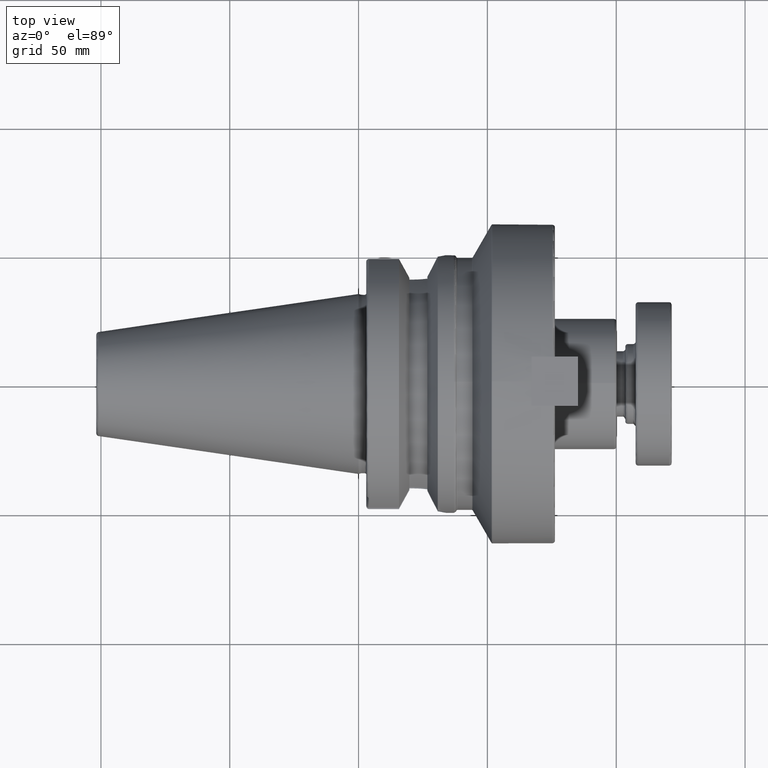
[diagram: clean part render]
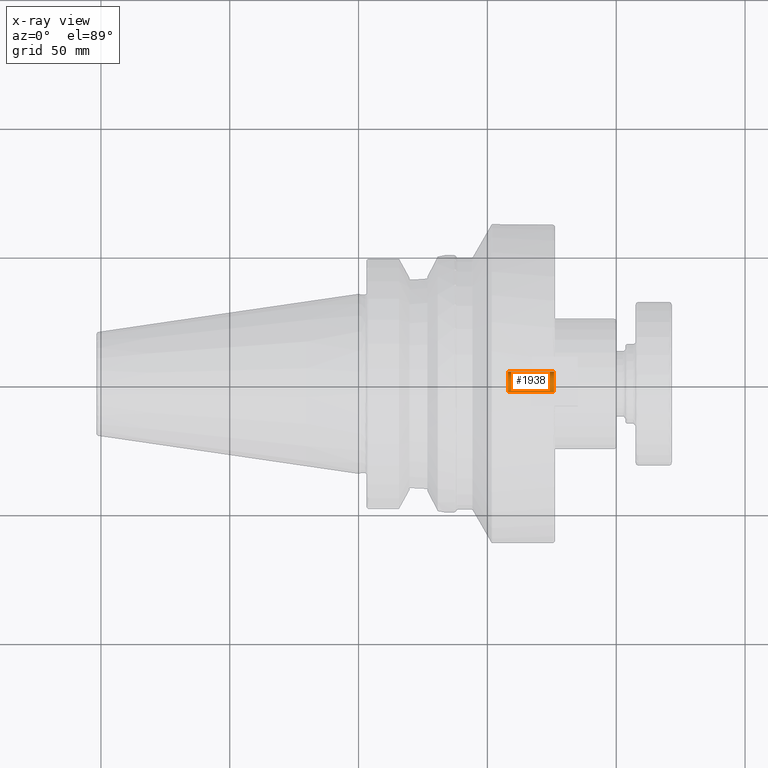
[diagram: x-ray — body ghosted, one internal face saturated and labeled with its STEP entity id]
A machine part, top view, then the same camera in x-ray: the body is ghosted and one INTERNAL B-rep face — a face not visible from any outside direction — is saturated and labeled: STEP entity #1938.
In plain terms, the highlighted cylindrical surface (bore or boss wall) has radius 3.9624 mm, axis along (-1, -0, 0).
Its self-contained STEP definition (entity closure, byte-faithful):
#123=CYLINDRICAL_SURFACE('',#2246,0.156);
#212=CIRCLE('',#2244,0.156);
#213=CIRCLE('',#2245,0.156);
#214=CIRCLE('',#2247,0.156);
#215=CIRCLE('',#2248,0.156);
#346=FACE_OUTER_BOUND('',#475,.T.);
#475=EDGE_LOOP('',(#1621,#1622,#1623,#1624,#1625,#1626));
#600=LINE('',#3497,#725);
#725=VECTOR('',#2750,0.156);
#909=VERTEX_POINT('',#3487);
#910=VERTEX_POINT('',#3489);
#911=VERTEX_POINT('',#3493);
#912=VERTEX_POINT('',#3494);
#1156=EDGE_CURVE('',#909,#910,#212,.T.);
#1157=EDGE_CURVE('',#910,#909,#213,.T.);
#1158=EDGE_CURVE('',#911,#912,#214,.T.);
#1159=EDGE_CURVE('',#912,#911,#215,.T.);
#1160=EDGE_CURVE('',#912,#910,#600,.T.);
#1621=ORIENTED_EDGE('',*,*,#1158,.F.);
#1622=ORIENTED_EDGE('',*,*,#1159,.F.);
#1623=ORIENTED_EDGE('',*,*,#1160,.T.);
#1624=ORIENTED_EDGE('',*,*,#1156,.F.);
#1625=ORIENTED_EDGE('',*,*,#1157,.F.);
#1626=ORIENTED_EDGE('',*,*,#1160,.F.);
#1938=ADVANCED_FACE('',(#346),#123,.T.);
#2244=AXIS2_PLACEMENT_3D('',#3490,#2740,#2741);
#2245=AXIS2_PLACEMENT_3D('',#3491,#2742,#2743);
#2246=AXIS2_PLACEMENT_3D('',#3492,#2744,#2745);
#2247=AXIS2_PLACEMENT_3D('',#3495,#2746,#2747);
#2248=AXIS2_PLACEMENT_3D('',#3496,#2748,#2749);
#2740=DIRECTION('center_axis',(-1.,8.71022722361728E-19,0.));
#2741=DIRECTION('ref_axis',(0.,-1.,1.22464679914735E-16));
#2742=DIRECTION('center_axis',(-1.,8.71022722361728E-19,0.));
#2743=DIRECTION('ref_axis',(0.,-1.,1.22464679914735E-16));
#2744=DIRECTION('center_axis',(1.,-8.71022722361728E-19,0.));
#2745=DIRECTION('ref_axis',(0.,1.,0.));
#2746=DIRECTION('center_axis',(1.,-8.71022722361728E-19,0.));
#2747=DIRECTION('ref_axis',(0.,-1.,0.));
#2748=DIRECTION('center_axis',(1.,-8.71022722361728E-19,0.));
#2749=DIRECTION('ref_axis',(0.,-1.,0.));
#2750=DIRECTION('',(-1.,8.71022722361728E-19,0.));
#3487=CARTESIAN_POINT('',(0.00900000000000013,-1.84590622294287E-17,0.156));
#3489=CARTESIAN_POINT('',(0.00900000000000013,-0.156,-1.91044900666987E-17));
#3490=CARTESIAN_POINT('Origin',(0.00900000000000013,6.45427837270041E-19,
0.));
#3491=CARTESIAN_POINT('Origin',(0.00900000000000013,6.45427837270041E-19,
0.));
#3492=CARTESIAN_POINT('Origin',(0.444448937,2.6614191871478E-19,0.));
#3493=CARTESIAN_POINT('',(0.71695,0.156,1.91044900666987E-17));
#3494=CARTESIAN_POINT('',(0.71695,-0.156,-1.91044900666987E-17));
#3495=CARTESIAN_POINT('Origin',(0.71695,2.87873009740551E-20,0.));
#3496=CARTESIAN_POINT('Origin',(0.71695,2.87873009740551E-20,0.));
#3497=CARTESIAN_POINT('',(0.444448937,-0.156,-1.91044900666987E-17));